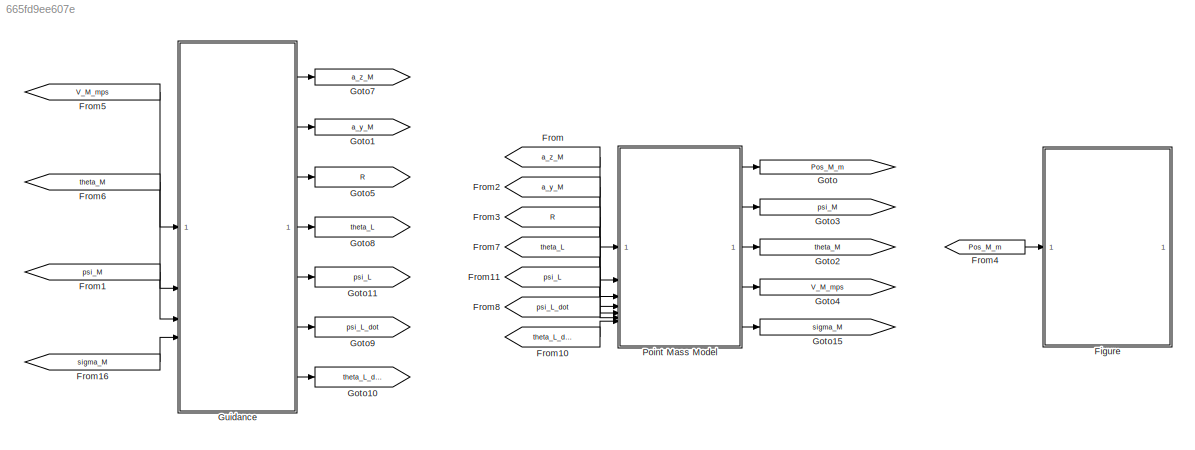
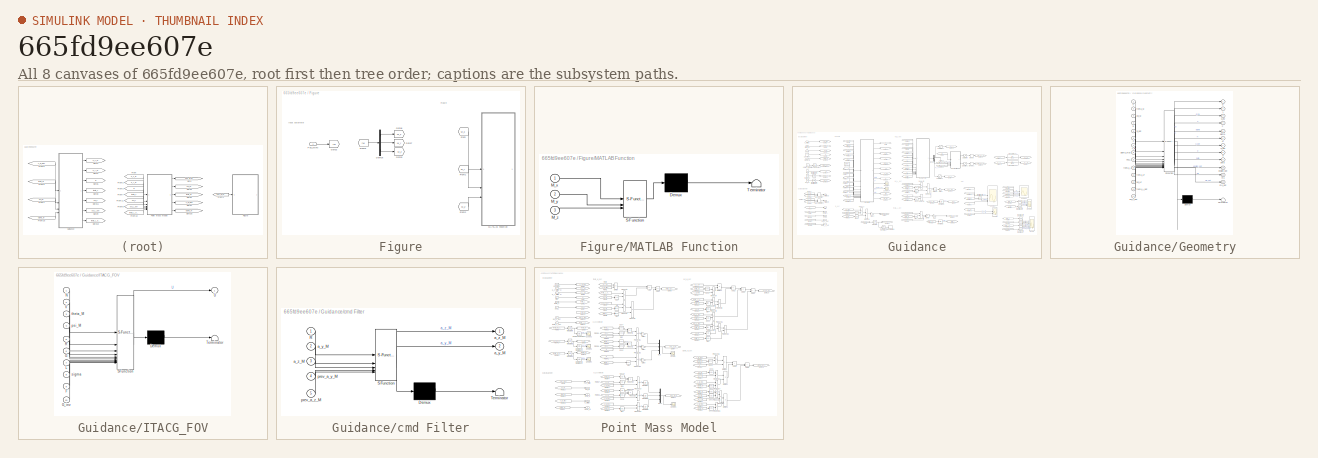
[diagram: thumbnail index - all 8 canvases of the model, root first then tree order]
MODEL slx_665fd9ee607e
KIND model
CONFIG AbsTol = auto
CONFIG EnableMultiTasking = off
CONFIG FixedStep = 1/100
CONFIG MaxStep = auto
CONFIG MinStep = auto
CONFIG RelTol = 1e-3
CONFIG SampleTimeConstraint = Unconstrained
CONFIG SolverName = ode4
CONFIG StartTime = 0.0
CONFIG StopTime = 60
BLOCK [SubSystem] Figure
BLOCK [Demux] Figure/Demux
  Outputs = 3
BLOCK [From] Figure/From
  GotoTag = M_x
BLOCK [From] Figure/From1
  GotoTag = M_y
BLOCK [From] Figure/From2
  GotoTag = M_z
BLOCK [From] Figure/From6
  GotoTag = rM
BLOCK [Goto] Figure/Goto2
  GotoTag = rM
BLOCK [Goto] Figure/Goto3
  GotoTag = M_z
BLOCK [Goto] Figure/Goto6
  GotoTag = M_x
BLOCK [Goto] Figure/Goto7
  GotoTag = M_y
BLOCK [SubSystem] Figure/MATLAB Function
  ErrorFcn = Stateflow.Translate.translate
  PermitHierarchicalResolution = ExplicitOnly
  SFBlockType = MATLAB Function
  TreatAsAtomicUnit = on
BLOCK [Demux] Figure/MATLAB Function/ Demux 
  Outputs = 1
BLOCK [S-Function] Figure/MATLAB Function/ SFunction 
  EnableBusSupport = on
  FunctionName = sf_sfun
  PortCounts = [3 1]
  SFcnIsStateOwnerBlock = off
  SFunctionDeploymentMode = off
  Tag = Stateflow S-Function 6
BLOCK [Terminator] Figure/MATLAB Function/ Terminator 
BLOCK [Inport] Figure/MATLAB Function/M_x
BLOCK [Inport] Figure/MATLAB Function/M_y
  Port = 2
BLOCK [Inport] Figure/MATLAB Function/M_z
  Port = 3
BLOCK [Inport] Figure/Pos_M[m]
BLOCK [From] From
  GotoTag = a_z_M
BLOCK [From] From1
  GotoTag = psi_M
BLOCK [From] From10
  GotoTag = theta_L_dot
BLOCK [From] From11
  GotoTag = psi_L
BLOCK [From] From16
  GotoTag = sigma_M
BLOCK [From] From2
  GotoTag = a_y_M
BLOCK [From] From3
  GotoTag = R
BLOCK [From] From4
  GotoTag = Pos_M_m
BLOCK [From] From5
  GotoTag = V_M_mps
BLOCK [From] From6
  GotoTag = theta_M
BLOCK [From] From7
  GotoTag = theta_L
BLOCK [From] From8
  GotoTag = psi_L_dot
BLOCK [Goto] Goto
  GotoTag = Pos_M_m
BLOCK [Goto] Goto1
  GotoTag = a_y_M
BLOCK [Goto] Goto10
  GotoTag = theta_L_dot
BLOCK [Goto] Goto11
  GotoTag = psi_L
BLOCK [Goto] Goto15
  GotoTag = sigma_M
BLOCK [Goto] Goto2
  GotoTag = theta_M
BLOCK [Goto] Goto3
  GotoTag = psi_M
BLOCK [Goto] Goto4
  GotoTag = V_M_mps
BLOCK [Goto] Goto5
  GotoTag = R
BLOCK [Goto] Goto7
  GotoTag = a_z_M
BLOCK [Goto] Goto8
  GotoTag = theta_L
BLOCK [Goto] Goto9
  GotoTag = psi_L_dot
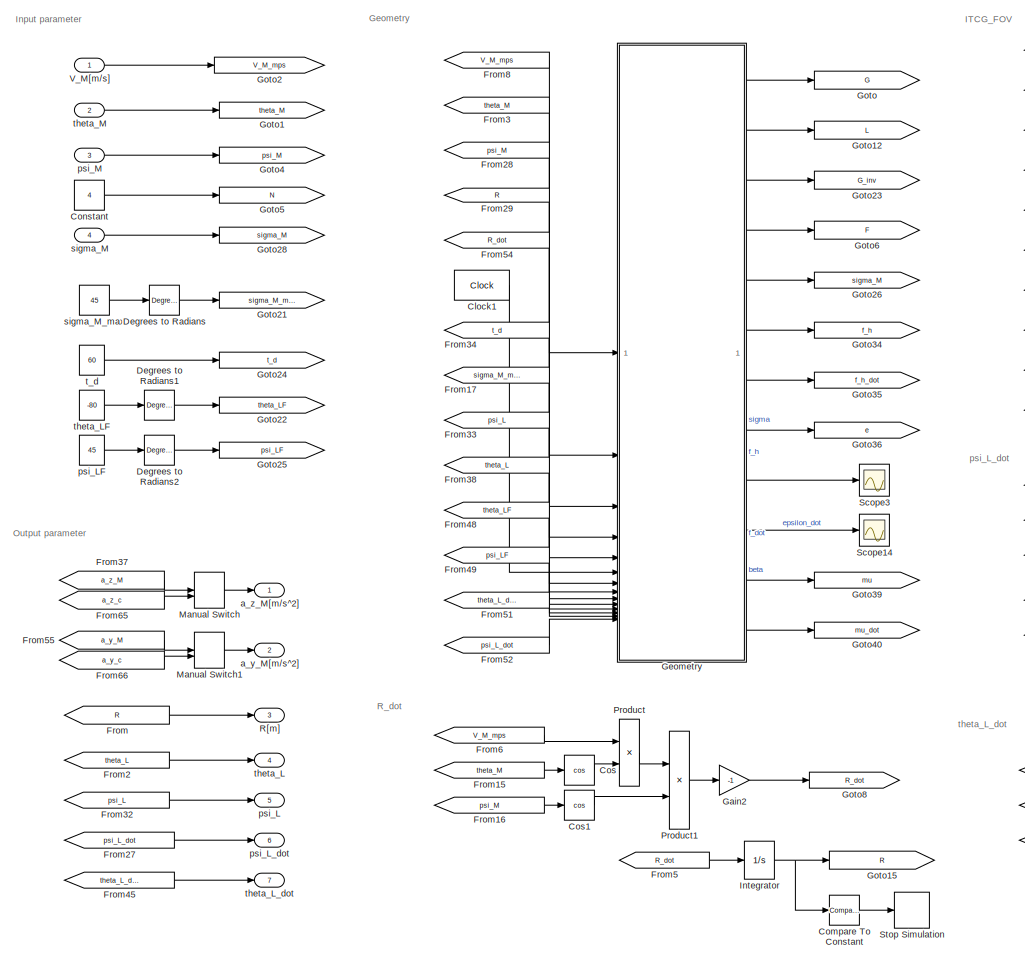
[diagram: Guidance - part 1/3, left side, full height]
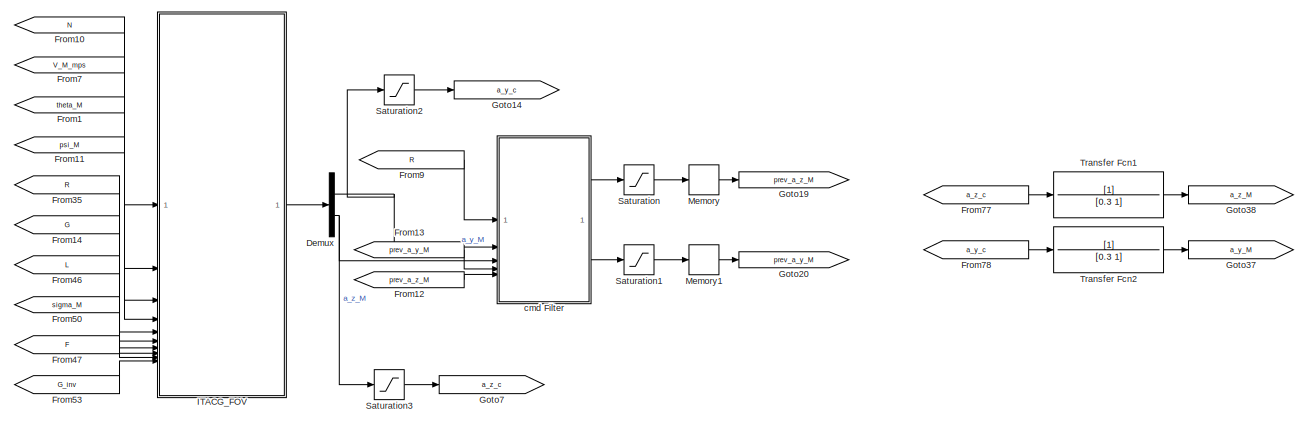
[diagram: Guidance - part 2/3, top right region]
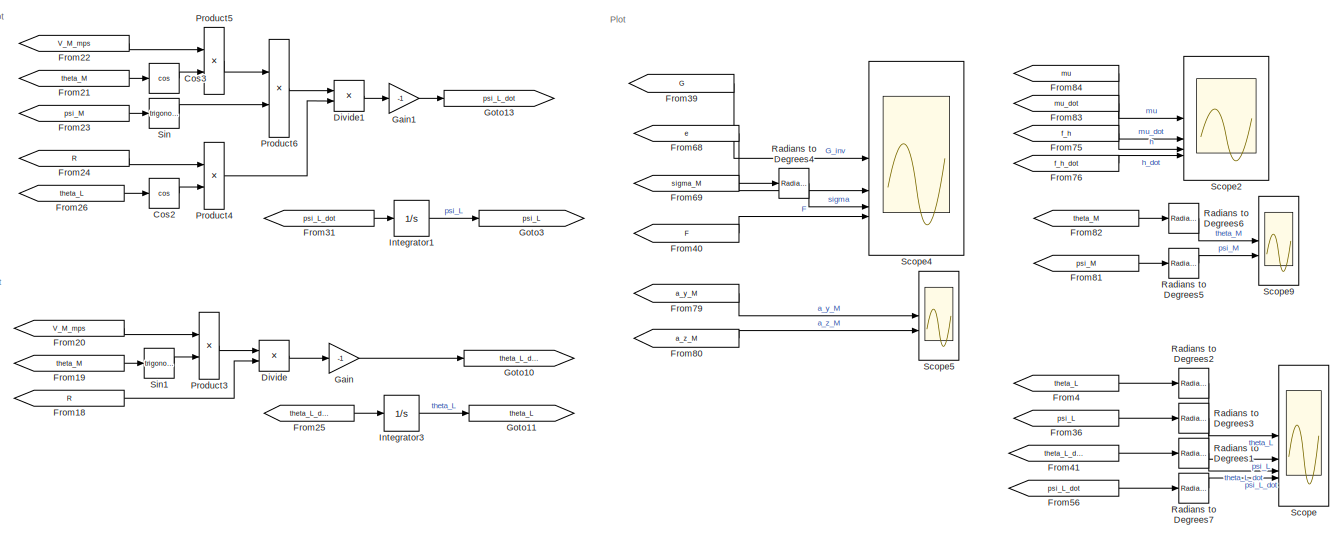
[diagram: Guidance - part 3/3, bottom right region]
BLOCK [SubSystem] Guidance
BLOCK [Clock] Guidance/Clock1
  DisplayTime = on
BLOCK [Reference] Guidance/Compare To Constant  REF=simulink/Logic and Bit
Operations/Compare
To Constant
  SourceBlock = simulink/Logic and Bit\nOperations/Compare\nTo Constant
  SourceType = Compare To Constant
BLOCK [Constant] Guidance/Constant
  Value = 4
BLOCK [Trigonometry] Guidance/Cos
  Operator = cos
BLOCK [Trigonometry] Guidance/Cos1
  Operator = cos
BLOCK [Trigonometry] Guidance/Cos2
  Operator = cos
BLOCK [Trigonometry] Guidance/Cos3
  Operator = cos
BLOCK [Reference] Guidance/Degrees to Radians  REF=simulink_extras/Transformations/Degrees to
Radians
  SourceBlock = simulink_extras/Transformations/Degrees to\nRadians
  SourceType = DegreesToRadians
BLOCK [Reference] Guidance/Degrees to Radians1  REF=simulink_extras/Transformations/Degrees to
Radians
  SourceBlock = simulink_extras/Transformations/Degrees to\nRadians
  SourceType = DegreesToRadians
BLOCK [Reference] Guidance/Degrees to Radians2  REF=simulink_extras/Transformations/Degrees to
Radians
  SourceBlock = simulink_extras/Transformations/Degrees to\nRadians
  SourceType = DegreesToRadians
BLOCK [Demux] Guidance/Demux
  Outputs = 2
BLOCK [Product] Guidance/Divide
  Inputs = */
BLOCK [Product] Guidance/Divide1
  Inputs = */
BLOCK [From] Guidance/From
  GotoTag = R
BLOCK [From] Guidance/From1
  GotoTag = theta_M
BLOCK [From] Guidance/From10
  GotoTag = N
BLOCK [From] Guidance/From11
  GotoTag = psi_M
BLOCK [From] Guidance/From12
  GotoTag = prev_a_z_M
BLOCK [From] Guidance/From13
  GotoTag = prev_a_y_M
BLOCK [From] Guidance/From14
  GotoTag = G
BLOCK [From] Guidance/From15
  GotoTag = theta_M
BLOCK [From] Guidance/From16
  GotoTag = psi_M
BLOCK [From] Guidance/From17
  GotoTag = sigma_M_max
BLOCK [From] Guidance/From18
  GotoTag = R
BLOCK [From] Guidance/From19
  GotoTag = theta_M
BLOCK [From] Guidance/From2
  GotoTag = theta_L
BLOCK [From] Guidance/From20
  GotoTag = V_M_mps
BLOCK [From] Guidance/From21
  GotoTag = theta_M
BLOCK [From] Guidance/From22
  GotoTag = V_M_mps
BLOCK [From] Guidance/From23
  GotoTag = psi_M
BLOCK [From] Guidance/From24
  GotoTag = R
BLOCK [From] Guidance/From25
  GotoTag = theta_L_dot
BLOCK [From] Guidance/From26
  GotoTag = theta_L
BLOCK [From] Guidance/From27
  GotoTag = psi_L_dot
BLOCK [From] Guidance/From28
  GotoTag = psi_M
BLOCK [From] Guidance/From29
  GotoTag = R
BLOCK [From] Guidance/From3
  GotoTag = theta_M
BLOCK [From] Guidance/From31
  GotoTag = psi_L_dot
BLOCK [From] Guidance/From32
  GotoTag = psi_L
BLOCK [From] Guidance/From33
  GotoTag = psi_L
BLOCK [From] Guidance/From34
  GotoTag = t_d
BLOCK [From] Guidance/From35
  GotoTag = R
BLOCK [From] Guidance/From36
  GotoTag = psi_L
BLOCK [From] Guidance/From37
  GotoTag = a_z_M
BLOCK [From] Guidance/From38
  GotoTag = theta_L
BLOCK [From] Guidance/From39
  GotoTag = G
BLOCK [From] Guidance/From4
  GotoTag = theta_L
BLOCK [From] Guidance/From40
  GotoTag = F
BLOCK [From] Guidance/From41
  GotoTag = theta_L_dot
BLOCK [From] Guidance/From45
  GotoTag = theta_L_dot
BLOCK [From] Guidance/From46
  GotoTag = L
BLOCK [From] Guidance/From47
  GotoTag = F
BLOCK [From] Guidance/From48
  GotoTag = theta_LF
BLOCK [From] Guidance/From49
  GotoTag = psi_LF
BLOCK [From] Guidance/From5
  GotoTag = R_dot
BLOCK [From] Guidance/From50
  GotoTag = sigma_M
BLOCK [From] Guidance/From51
  GotoTag = theta_L_dot
BLOCK [From] Guidance/From52
  GotoTag = psi_L_dot
BLOCK [From] Guidance/From53
  GotoTag = G_inv
BLOCK [From] Guidance/From54
  GotoTag = R_dot
BLOCK [From] Guidance/From55
  GotoTag = a_y_M
BLOCK [From] Guidance/From56
  GotoTag = psi_L_dot
BLOCK [From] Guidance/From6
  GotoTag = V_M_mps
BLOCK [From] Guidance/From65
  GotoTag = a_z_c
BLOCK [From] Guidance/From66
  GotoTag = a_y_c
  NameLocation = left
BLOCK [From] Guidance/From68
  GotoTag = e
BLOCK [From] Guidance/From69
  GotoTag = sigma_M
BLOCK [From] Guidance/From7
  GotoTag = V_M_mps
BLOCK [From] Guidance/From75
  GotoTag = f_h
BLOCK [From] Guidance/From76
  GotoTag = f_h_dot
BLOCK [From] Guidance/From77
  GotoTag = a_z_c
BLOCK [From] Guidance/From78
  GotoTag = a_y_c
BLOCK [From] Guidance/From79
  GotoTag = a_y_M
BLOCK [From] Guidance/From8
  GotoTag = V_M_mps
BLOCK [From] Guidance/From80
  GotoTag = a_z_M
BLOCK [From] Guidance/From81
  GotoTag = psi_M
BLOCK [From] Guidance/From82
  GotoTag = theta_M
BLOCK [From] Guidance/From83
  GotoTag = mu_dot
BLOCK [From] Guidance/From84
  GotoTag = mu
BLOCK [From] Guidance/From9
  GotoTag = R
BLOCK [Gain] Guidance/Gain
  Gain = -1
BLOCK [Gain] Guidance/Gain1
  Gain = -1
BLOCK [Gain] Guidance/Gain2
  Gain = -1
BLOCK [SubSystem] Guidance/Geometry
  ErrorFcn = Stateflow.Translate.translate
  PermitHierarchicalResolution = ExplicitOnly
  SFBlockType = MATLAB Function
  TreatAsAtomicUnit = on
BLOCK [Demux] Guidance/Geometry/ Demux 
  Outputs = 1
BLOCK [S-Function] Guidance/Geometry/ SFunction 
  EnableBusSupport = on
  FunctionName = sf_sfun
  PortCounts = [14 13]
  SFcnIsStateOwnerBlock = off
  SFunctionDeploymentMode = off
  Tag = Stateflow S-Function 3
BLOCK [Terminator] Guidance/Geometry/ Terminator 
BLOCK [Outport] Guidance/Geometry/F
  Port = 4
BLOCK [Outport] Guidance/Geometry/G
BLOCK [Outport] Guidance/Geometry/G_inv
  Port = 3
BLOCK [Outport] Guidance/Geometry/H
  Port = 6
BLOCK [Outport] Guidance/Geometry/H_dot
  Port = 7
BLOCK [Outport] Guidance/Geometry/L
  Port = 2
BLOCK [Inport] Guidance/Geometry/R
  Port = 4
BLOCK [Inport] Guidance/Geometry/R_dot
  Port = 5
BLOCK [Inport] Guidance/Geometry/V
BLOCK [Outport] Guidance/Geometry/beta
  Port = 9
BLOCK [Outport] Guidance/Geometry/e
  Port = 8
BLOCK [Outport] Guidance/Geometry/epsilon_dot
  Port = 10
BLOCK [Outport] Guidance/Geometry/mu
  Port = 11
BLOCK [Outport] Guidance/Geometry/mu_dot
  Port = 12
BLOCK [Inport] Guidance/Geometry/psi_L
  Port = 9
BLOCK [Inport] Guidance/Geometry/psi_LF
  Port = 12
BLOCK [Inport] Guidance/Geometry/psi_L_dot
  Port = 14
BLOCK [Inport] Guidance/Geometry/psi_M
  Port = 3
BLOCK [Outport] Guidance/Geometry/sigma
  Port = 5
BLOCK [Inport] Guidance/Geometry/sigma_max
  Port = 8
BLOCK [Inport] Guidance/Geometry/t
  Port = 6
BLOCK [Inport] Guidance/Geometry/t_d
  Port = 7
BLOCK [Inport] Guidance/Geometry/theta_L
  Port = 10
BLOCK [Inport] Guidance/Geometry/theta_LF
  Port = 11
BLOCK [Inport] Guidance/Geometry/theta_L_dot
  Port = 13
BLOCK [Inport] Guidance/Geometry/theta_M
  Port = 2
BLOCK [Goto] Guidance/Goto
  GotoTag = G
BLOCK [Goto] Guidance/Goto1
  GotoTag = theta_M
BLOCK [Goto] Guidance/Goto10
  GotoTag = theta_L_dot
BLOCK [Goto] Guidance/Goto11
  GotoTag = theta_L
BLOCK [Goto] Guidance/Goto12
  GotoTag = L
BLOCK [Goto] Guidance/Goto13
  GotoTag = psi_L_dot
BLOCK [Goto] Guidance/Goto14
  GotoTag = a_y_c
BLOCK [Goto] Guidance/Goto15
  GotoTag = R
BLOCK [Goto] Guidance/Goto19
  GotoTag = prev_a_z_M
BLOCK [Goto] Guidance/Goto2
  GotoTag = V_M_mps
BLOCK [Goto] Guidance/Goto20
  GotoTag = prev_a_y_M
BLOCK [Goto] Guidance/Goto21
  GotoTag = sigma_M_max
BLOCK [Goto] Guidance/Goto22
  GotoTag = theta_LF
BLOCK [Goto] Guidance/Goto23
  GotoTag = G_inv
BLOCK [Goto] Guidance/Goto24
  GotoTag = t_d
BLOCK [Goto] Guidance/Goto25
  GotoTag = psi_LF
BLOCK [Goto] Guidance/Goto26
  GotoTag = sigma_M
BLOCK [Goto] Guidance/Goto28
  Commented = on
  GotoTag = sigma_M
BLOCK [Goto] Guidance/Goto3
  GotoTag = psi_L
BLOCK [Goto] Guidance/Goto34
  GotoTag = f_h
BLOCK [Goto] Guidance/Goto35
  GotoTag = f_h_dot
BLOCK [Goto] Guidance/Goto36
  GotoTag = e
BLOCK [Goto] Guidance/Goto37
  GotoTag = a_y_M
BLOCK [Goto] Guidance/Goto38
  GotoTag = a_z_M
BLOCK [Goto] Guidance/Goto39
  GotoTag = mu
BLOCK [Goto] Guidance/Goto4
  GotoTag = psi_M
BLOCK [Goto] Guidance/Goto40
  GotoTag = mu_dot
BLOCK [Goto] Guidance/Goto5
  GotoTag = N
BLOCK [Goto] Guidance/Goto6
  GotoTag = F
BLOCK [Goto] Guidance/Goto7
  GotoTag = a_z_c
BLOCK [Goto] Guidance/Goto8
  GotoTag = R_dot
BLOCK [SubSystem] Guidance/ITACG_FOV
  ErrorFcn = Stateflow.Translate.translate
  LibrarySourceBlock = simulink/User-Defined\nFunctions/MATLAB Function
  PermitHierarchicalResolution = ExplicitOnly
  SFBlockType = MATLAB Function
  TreatAsAtomicUnit = on
BLOCK [Demux] Guidance/ITACG_FOV/ Demux 
  Outputs = 1
BLOCK [S-Function] Guidance/ITACG_FOV/ SFunction 
  EnableBusSupport = on
  FunctionName = sf_sfun
  PortCounts = [10 2]
  SFcnIsStateOwnerBlock = off
  SFunctionDeploymentMode = off
  Tag = Stateflow S-Function 2
BLOCK [Terminator] Guidance/ITACG_FOV/ Terminator 
BLOCK [Inport] Guidance/ITACG_FOV/F
  Port = 9
BLOCK [Inport] Guidance/ITACG_FOV/G
  Port = 6
BLOCK [Inport] Guidance/ITACG_FOV/G_inv
  Port = 10
BLOCK [Inport] Guidance/ITACG_FOV/L
  Port = 7
BLOCK [Inport] Guidance/ITACG_FOV/N
BLOCK [Inport] Guidance/ITACG_FOV/R
  Port = 5
BLOCK [Outport] Guidance/ITACG_FOV/U
BLOCK [Inport] Guidance/ITACG_FOV/V
  Port = 2
BLOCK [Inport] Guidance/ITACG_FOV/psi_M
  Port = 4
BLOCK [Inport] Guidance/ITACG_FOV/sigma
  Port = 8
BLOCK [Inport] Guidance/ITACG_FOV/theta_M
  Port = 3
BLOCK [Integrator] Guidance/Integrator
  InitialCondition = 15000
BLOCK [Integrator] Guidance/Integrator1
  InitialCondition = 45*pi/180
BLOCK [Integrator] Guidance/Integrator3
  InitialCondition = -15*pi/180
BLOCK [ManualSwitch] Guidance/Manual Switch
BLOCK [ManualSwitch] Guidance/Manual Switch1
BLOCK [Memory] Guidance/Memory
BLOCK [Memory] Guidance/Memory1
BLOCK [Product] Guidance/Product
BLOCK [Product] Guidance/Product1
BLOCK [Product] Guidance/Product3
BLOCK [Product] Guidance/Product4
BLOCK [Product] Guidance/Product5
BLOCK [Product] Guidance/Product6
BLOCK [Outport] Guidance/R[m]
  Port = 3
BLOCK [Reference] Guidance/Radians to Degrees1  REF=simulink_extras/Transformations/Radians
to Degrees
  SourceBlock = simulink_extras/Transformations/Radians\nto Degrees
  SourceType = RadiansToDegrees
BLOCK [Reference] Guidance/Radians to Degrees2  REF=simulink_extras/Transformations/Radians
to Degrees
  SourceBlock = simulink_extras/Transformations/Radians\nto Degrees
  SourceType = RadiansToDegrees
BLOCK [Reference] Guidance/Radians to Degrees3  REF=simulink_extras/Transformations/Radians
to Degrees
  SourceBlock = simulink_extras/Transformations/Radians\nto Degrees
  SourceType = RadiansToDegrees
BLOCK [Reference] Guidance/Radians to Degrees4  REF=simulink_extras/Transformations/Radians
to Degrees
  SourceBlock = simulink_extras/Transformations/Radians\nto Degrees
  SourceType = RadiansToDegrees
BLOCK [Reference] Guidance/Radians to Degrees5  REF=simulink_extras/Transformations/Radians
to Degrees
  SourceBlock = simulink_extras/Transformations/Radians\nto Degrees
  SourceType = RadiansToDegrees
BLOCK [Reference] Guidance/Radians to Degrees6  REF=simulink_extras/Transformations/Radians
to Degrees
  SourceBlock = simulink_extras/Transformations/Radians\nto Degrees
  SourceType = RadiansToDegrees
BLOCK [Reference] Guidance/Radians to Degrees7  REF=simulink_extras/Transformations/Radians
to Degrees
  SourceBlock = simulink_extras/Transformations/Radians\nto Degrees
  SourceType = RadiansToDegrees
BLOCK [Saturate] Guidance/Saturation
  LowerLimit = -100
  UpperLimit = 100
BLOCK [Saturate] Guidance/Saturation1
  LowerLimit = -100
  UpperLimit = 100
BLOCK [Saturate] Guidance/Saturation2
  LowerLimit = -100
  UpperLimit = 100
BLOCK [Saturate] Guidance/Saturation3
  LowerLimit = -100
  UpperLimit = 100
BLOCK [Scope] Guidance/Scope
  Floating = off
  NumInputPorts = 4
  ScopeSpecificationString = Simulink.scopes.TimeScopeBlockCfg('CurrentConfiguration', extmgr.ConfigurationSet(extmgr.Configuration('Core','General UI',true),extmgr.Configuration('Core','Source UI',true),extmgr.Configuration('Sources','WiredSimulink',true,'DataLoggingVariableName','ScopeData1'),extmgr.Configuration('Visuals','Time Domain',true,'SerializedDisplays',{struct('MinYLimReal','-56.90835','MaxYLimReal','11.77984','YL...<+3406ch>
BLOCK [Scope] Guidance/Scope14
  Floating = off
  NumInputPorts = 1
  ScopeSpecificationString = Simulink.scopes.TimeScopeBlockCfg('CurrentConfiguration', extmgr.ConfigurationSet(extmgr.Configuration('Core','General UI',true),extmgr.Configuration('Core','Source UI',true),extmgr.Configuration('Sources','WiredSimulink',true,'DataLoggingVariableName','ScopeData1'),extmgr.Configuration('Visuals','Time Domain',true,'SerializedDisplays',{struct('MinYLimReal','-1.21177','MaxYLimReal','0.12808','YLab...<+1443ch>
BLOCK [Scope] Guidance/Scope2
  Floating = off
  NumInputPorts = 4
  ScopeSpecificationString = Simulink.scopes.TimeScopeBlockCfg('CurrentConfiguration', extmgr.ConfigurationSet(extmgr.Configuration('Core','General UI',true),extmgr.Configuration('Core','Source UI',true),extmgr.Configuration('Sources','WiredSimulink',true,'DataLoggingVariableName','ScopeData1'),extmgr.Configuration('Visuals','Time Domain',true,'SerializedDisplays',{struct('MinYLimReal','-448.875','MaxYLimReal','4049.875','YLa...<+3415ch>
BLOCK [Scope] Guidance/Scope3
  Floating = off
  NumInputPorts = 1
  ScopeSpecificationString = Simulink.scopes.TimeScopeBlockCfg('CurrentConfiguration', extmgr.ConfigurationSet(extmgr.Configuration('Core','General UI',true),extmgr.Configuration('Core','Source UI',true),extmgr.Configuration('Sources','WiredSimulink',true,'DataLoggingVariableName','ScopeData1'),extmgr.Configuration('Visuals','Time Domain',true,'SerializedDisplays',{struct('MinYLimReal','-0.000001','MaxYLimReal','0.000015','YL...<+1446ch>
BLOCK [Scope] Guidance/Scope4
  Floating = off
  NumInputPorts = 4
  ScopeSpecificationString = Simulink.scopes.TimeScopeBlockCfg('CurrentConfiguration', extmgr.ConfigurationSet(extmgr.Configuration('Core','General UI',true),extmgr.Configuration('Core','Source UI',true),extmgr.Configuration('Sources','WiredSimulink',true,'DataLoggingVariableName','ScopeData3'),extmgr.Configuration('Visuals','Time Domain',true,'SerializedDisplays',{struct('MinYLimReal','-0.05364','MaxYLimReal','0.00611','YLab...<+3470ch>
BLOCK [Scope] Guidance/Scope5
  Floating = off
  NumInputPorts = 2
  ScopeSpecificationString = Simulink.scopes.TimeScopeBlockCfg('CurrentConfiguration', extmgr.ConfigurationSet(extmgr.Configuration('Core','General UI',true),extmgr.Configuration('Core','Source UI',true),extmgr.Configuration('Sources','WiredSimulink',true,'DataLoggingVariableName','ScopeData2'),extmgr.Configuration('Visuals','Time Domain',true,'SerializedDisplays',{struct('MinYLimReal','-14.43663','MaxYLimReal','12.58901','YL...<+2041ch>
BLOCK [Scope] Guidance/Scope9
  Floating = off
  NumInputPorts = 2
  ScopeSpecificationString = Simulink.scopes.TimeScopeBlockCfg('CurrentConfiguration', extmgr.ConfigurationSet(extmgr.Configuration('Core','General UI',true),extmgr.Configuration('Core','Source UI',true),extmgr.Configuration('Sources','WiredSimulink',true,'DataLoggingVariableName','ScopeData1'),extmgr.Configuration('Visuals','Time Domain',true,'SerializedDisplays',{struct('MinYLimReal','0.09525','MaxYLimReal','99.14276','YLab...<+2111ch>
BLOCK [Trigonometry] Guidance/Sin
BLOCK [Trigonometry] Guidance/Sin1
BLOCK [Stop] Guidance/Stop Simulation
BLOCK [TransferFcn] Guidance/Transfer Fcn1
  Denominator = [0.3 1]
  ParameterTunability = Optimized
BLOCK [TransferFcn] Guidance/Transfer Fcn2
  Denominator = [0.3 1]
  ParameterTunability = Optimized
BLOCK [Inport] Guidance/V_M[m//s]
BLOCK [Outport] Guidance/a_y_M[m//s^2]
  Port = 2
BLOCK [Outport] Guidance/a_z_M[m//s^2]
BLOCK [SubSystem] Guidance/cmd Filter
  ErrorFcn = Stateflow.Translate.translate
  PermitHierarchicalResolution = ExplicitOnly
  SFBlockType = MATLAB Function
  TreatAsAtomicUnit = on
BLOCK [Demux] Guidance/cmd Filter/ Demux 
  Outputs = 1
BLOCK [S-Function] Guidance/cmd Filter/ SFunction 
  EnableBusSupport = on
  FunctionName = sf_sfun
  PortCounts = [5 3]
  SFcnIsStateOwnerBlock = off
  SFunctionDeploymentMode = off
  Tag = Stateflow S-Function 1
BLOCK [Terminator] Guidance/cmd Filter/ Terminator 
BLOCK [Inport] Guidance/cmd Filter/R
BLOCK [Outport] Guidance/cmd Filter/a_y_M
  Port = 2
BLOCK [Inport] Guidance/cmd Filter/a_y_M 
  Port = 2
BLOCK [Outport] Guidance/cmd Filter/a_z_M
BLOCK [Inport] Guidance/cmd Filter/a_z_M 
  Port = 3
BLOCK [Inport] Guidance/cmd Filter/prev_a_y_M
  Port = 4
BLOCK [Inport] Guidance/cmd Filter/prev_a_z_M
  Port = 5
BLOCK [Outport] Guidance/psi_L
  Port = 5
BLOCK [Constant] Guidance/psi_LF
  Value = 45
BLOCK [Outport] Guidance/psi_L_dot
  Port = 6
BLOCK [Inport] Guidance/psi_M
  Port = 3
BLOCK [Inport] Guidance/sigma_M
  Port = 4
BLOCK [Constant] Guidance/sigma_M_max
  Value = 45
BLOCK [Constant] Guidance/t_d
  Value = 60
BLOCK [Outport] Guidance/theta_L
  Port = 4
BLOCK [Constant] Guidance/theta_LF
  Value = -80
BLOCK [Outport] Guidance/theta_L_dot
  Port = 7
BLOCK [Inport] Guidance/theta_M
  Port = 2
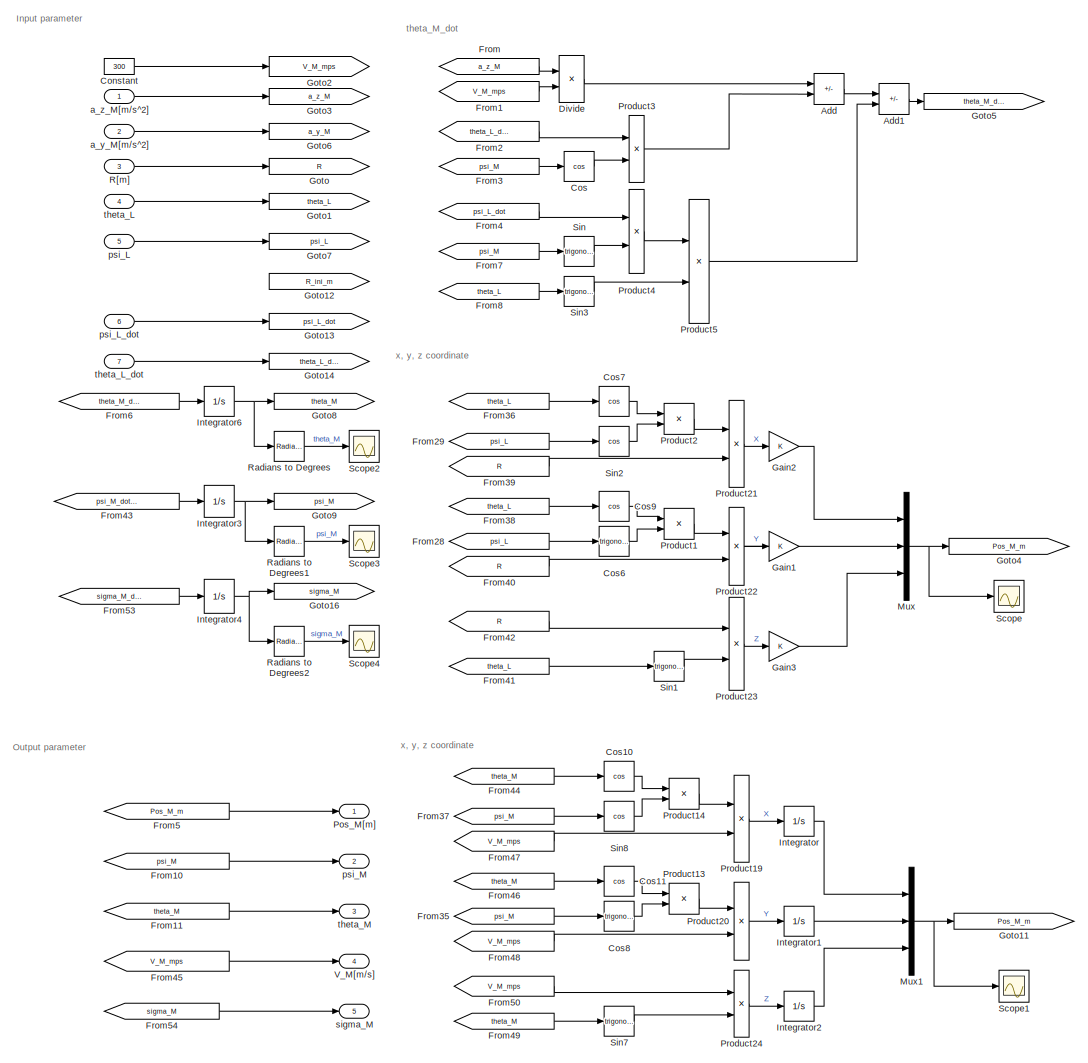
[diagram: Point Mass Model - part 1/2, left side, full height]
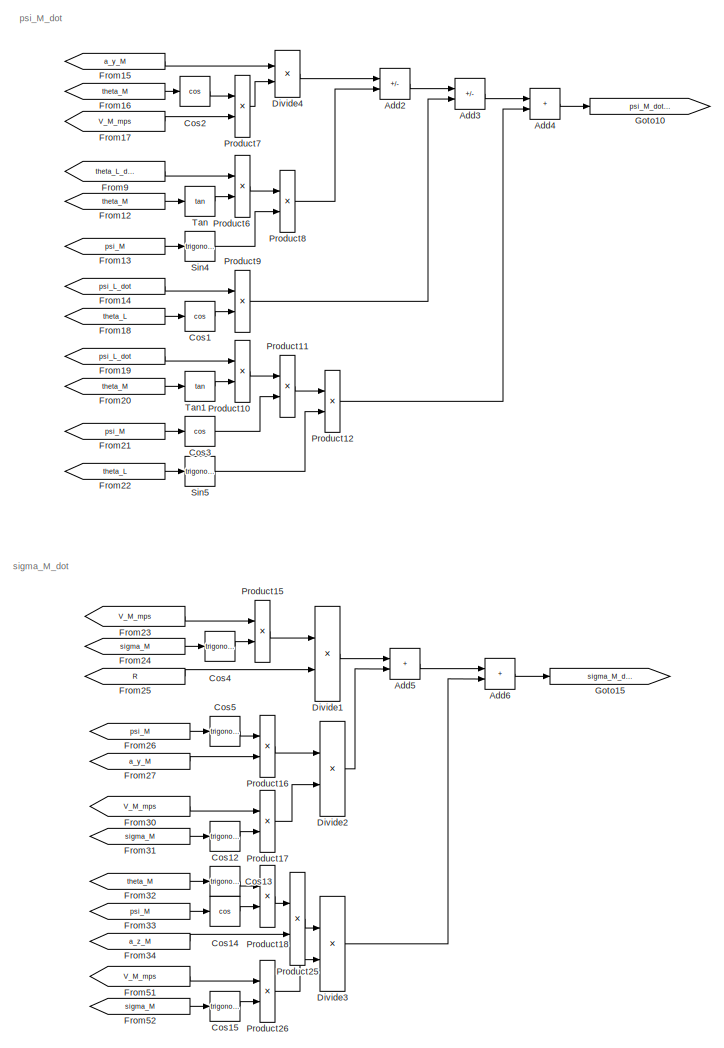
[diagram: Point Mass Model - part 2/2, right side, full height]
BLOCK [SubSystem] Point Mass Model
BLOCK [Sum] Point Mass Model/Add
  IconShape = rectangular
  Inputs = +-
BLOCK [Sum] Point Mass Model/Add1
  IconShape = rectangular
  Inputs = +-
BLOCK [Sum] Point Mass Model/Add2
  IconShape = rectangular
  Inputs = +-
BLOCK [Sum] Point Mass Model/Add3
  IconShape = rectangular
  Inputs = +-
BLOCK [Sum] Point Mass Model/Add4
  IconShape = rectangular
BLOCK [Sum] Point Mass Model/Add5
  IconShape = rectangular
BLOCK [Sum] Point Mass Model/Add6
  IconShape = rectangular
BLOCK [Constant] Point Mass Model/Constant
  Value = 300
BLOCK [Trigonometry] Point Mass Model/Cos
  Operator = cos
BLOCK [Trigonometry] Point Mass Model/Cos1
  Operator = cos
BLOCK [Trigonometry] Point Mass Model/Cos10
  Operator = cos
BLOCK [Trigonometry] Point Mass Model/Cos11
  Operator = cos
BLOCK [Trigonometry] Point Mass Model/Cos12
BLOCK [Trigonometry] Point Mass Model/Cos13
BLOCK [Trigonometry] Point Mass Model/Cos14
  Operator = cos
BLOCK [Trigonometry] Point Mass Model/Cos15
BLOCK [Trigonometry] Point Mass Model/Cos2
  Operator = cos
BLOCK [Trigonometry] Point Mass Model/Cos3
  Operator = cos
BLOCK [Trigonometry] Point Mass Model/Cos4
BLOCK [Trigonometry] Point Mass Model/Cos5
BLOCK [Trigonometry] Point Mass Model/Cos6
BLOCK [Trigonometry] Point Mass Model/Cos7
  Operator = cos
BLOCK [Trigonometry] Point Mass Model/Cos8
BLOCK [Trigonometry] Point Mass Model/Cos9
  Operator = cos
BLOCK [Product] Point Mass Model/Divide
  Inputs = */
BLOCK [Product] Point Mass Model/Divide1
  Inputs = */
BLOCK [Product] Point Mass Model/Divide2
  Inputs = */
BLOCK [Product] Point Mass Model/Divide3
  Inputs = */
BLOCK [Product] Point Mass Model/Divide4
  Inputs = */
BLOCK [From] Point Mass Model/From
  GotoTag = a_z_M
BLOCK [From] Point Mass Model/From1
  GotoTag = V_M_mps
BLOCK [From] Point Mass Model/From10
  GotoTag = psi_M
BLOCK [From] Point Mass Model/From11
  GotoTag = theta_M
BLOCK [From] Point Mass Model/From12
  GotoTag = theta_M
BLOCK [From] Point Mass Model/From13
  GotoTag = psi_M
BLOCK [From] Point Mass Model/From14
  GotoTag = psi_L_dot
BLOCK [From] Point Mass Model/From15
  GotoTag = a_y_M
BLOCK [From] Point Mass Model/From16
  GotoTag = theta_M
BLOCK [From] Point Mass Model/From17
  GotoTag = V_M_mps
BLOCK [From] Point Mass Model/From18
  GotoTag = theta_L
BLOCK [From] Point Mass Model/From19
  GotoTag = psi_L_dot
BLOCK [From] Point Mass Model/From2
  GotoTag = theta_L_dot
BLOCK [From] Point Mass Model/From20
  GotoTag = theta_M
BLOCK [From] Point Mass Model/From21
  GotoTag = psi_M
BLOCK [From] Point Mass Model/From22
  GotoTag = theta_L
BLOCK [From] Point Mass Model/From23
  GotoTag = V_M_mps
BLOCK [From] Point Mass Model/From24
  GotoTag = sigma_M
BLOCK [From] Point Mass Model/From25
  GotoTag = R
BLOCK [From] Point Mass Model/From26
  GotoTag = psi_M
BLOCK [From] Point Mass Model/From27
  GotoTag = a_y_M
BLOCK [From] Point Mass Model/From28
  GotoTag = psi_L
BLOCK [From] Point Mass Model/From29
  GotoTag = psi_L
BLOCK [From] Point Mass Model/From3
  GotoTag = psi_M
BLOCK [From] Point Mass Model/From30
  GotoTag = V_M_mps
BLOCK [From] Point Mass Model/From31
  GotoTag = sigma_M
BLOCK [From] Point Mass Model/From32
  GotoTag = theta_M
BLOCK [From] Point Mass Model/From33
  GotoTag = psi_M
BLOCK [From] Point Mass Model/From34
  GotoTag = a_z_M
BLOCK [From] Point Mass Model/From35
  GotoTag = psi_M
BLOCK [From] Point Mass Model/From36
  GotoTag = theta_L
  IconDisplay = Signal name
BLOCK [From] Point Mass Model/From37
  GotoTag = psi_M
BLOCK [From] Point Mass Model/From38
  GotoTag = theta_L
BLOCK [From] Point Mass Model/From39
  GotoTag = R
BLOCK [From] Point Mass Model/From4
  GotoTag = psi_L_dot
BLOCK [From] Point Mass Model/From40
  GotoTag = R
BLOCK [From] Point Mass Model/From41
  GotoTag = theta_L
BLOCK [From] Point Mass Model/From42
  GotoTag = R
BLOCK [From] Point Mass Model/From43
  GotoTag = psi_M_dot_state
BLOCK [From] Point Mass Model/From44
  GotoTag = theta_M
  IconDisplay = Signal name
BLOCK [From] Point Mass Model/From45
  GotoTag = V_M_mps
BLOCK [From] Point Mass Model/From46
  GotoTag = theta_M
BLOCK [From] Point Mass Model/From47
  GotoTag = V_M_mps
BLOCK [From] Point Mass Model/From48
  GotoTag = V_M_mps
BLOCK [From] Point Mass Model/From49
  GotoTag = theta_M
BLOCK [From] Point Mass Model/From5
  GotoTag = Pos_M_m
BLOCK [From] Point Mass Model/From50
  GotoTag = V_M_mps
BLOCK [From] Point Mass Model/From51
  GotoTag = V_M_mps
BLOCK [From] Point Mass Model/From52
  GotoTag = sigma_M
BLOCK [From] Point Mass Model/From53
  GotoTag = sigma_M_dot
BLOCK [From] Point Mass Model/From54
  GotoTag = sigma_M
BLOCK [From] Point Mass Model/From6
  GotoTag = theta_M_dot_state
BLOCK [From] Point Mass Model/From7
  GotoTag = psi_M
BLOCK [From] Point Mass Model/From8
  GotoTag = theta_L
BLOCK [From] Point Mass Model/From9
  GotoTag = theta_L_dot
BLOCK [Gain] Point Mass Model/Gain1
BLOCK [Gain] Point Mass Model/Gain2
BLOCK [Gain] Point Mass Model/Gain3
BLOCK [Goto] Point Mass Model/Goto
  GotoTag = R
BLOCK [Goto] Point Mass Model/Goto1
  GotoTag = theta_L
BLOCK [Goto] Point Mass Model/Goto10
  GotoTag = psi_M_dot_state
BLOCK [Goto] Point Mass Model/Goto11
  Commented = on
  GotoTag = Pos_M_m
BLOCK [Goto] Point Mass Model/Goto12
  GotoTag = R_ini_m
BLOCK [Goto] Point Mass Model/Goto13
  GotoTag = psi_L_dot
BLOCK [Goto] Point Mass Model/Goto14
  GotoTag = theta_L_dot
BLOCK [Goto] Point Mass Model/Goto15
  GotoTag = sigma_M_dot
BLOCK [Goto] Point Mass Model/Goto16
  GotoTag = sigma_M
BLOCK [Goto] Point Mass Model/Goto2
  GotoTag = V_M_mps
BLOCK [Goto] Point Mass Model/Goto3
  GotoTag = a_z_M
BLOCK [Goto] Point Mass Model/Goto4
  GotoTag = Pos_M_m
BLOCK [Goto] Point Mass Model/Goto5
  GotoTag = theta_M_dot_state
BLOCK [Goto] Point Mass Model/Goto6
  GotoTag = a_y_M
BLOCK [Goto] Point Mass Model/Goto7
  GotoTag = psi_L
BLOCK [Goto] Point Mass Model/Goto8
  GotoTag = theta_M
BLOCK [Goto] Point Mass Model/Goto9
  GotoTag = psi_M
BLOCK [Integrator] Point Mass Model/Integrator
BLOCK [Integrator] Point Mass Model/Integrator1
BLOCK [Integrator] Point Mass Model/Integrator2
BLOCK [Integrator] Point Mass Model/Integrator3
  InitialCondition = 0*pi/180
BLOCK [Integrator] Point Mass Model/Integrator4
  InitialCondition = 10*pi/180
BLOCK [Integrator] Point Mass Model/Integrator6
  InitialCondition = 10*pi/180
BLOCK [Mux] Point Mass Model/Mux
  DisplayOption = bar
  Inputs = 3
BLOCK [Mux] Point Mass Model/Mux1
  DisplayOption = bar
  Inputs = 3
BLOCK [Outport] Point Mass Model/Pos_M[m]
BLOCK [Product] Point Mass Model/Product1
BLOCK [Product] Point Mass Model/Product10
BLOCK [Product] Point Mass Model/Product11
BLOCK [Product] Point Mass Model/Product12
BLOCK [Product] Point Mass Model/Product13
BLOCK [Product] Point Mass Model/Product14
BLOCK [Product] Point Mass Model/Product15
BLOCK [Product] Point Mass Model/Product16
BLOCK [Product] Point Mass Model/Product17
BLOCK [Product] Point Mass Model/Product18
BLOCK [Product] Point Mass Model/Product19
BLOCK [Product] Point Mass Model/Product2
BLOCK [Product] Point Mass Model/Product20
BLOCK [Product] Point Mass Model/Product21
BLOCK [Product] Point Mass Model/Product22
BLOCK [Product] Point Mass Model/Product23
BLOCK [Product] Point Mass Model/Product24
BLOCK [Product] Point Mass Model/Product25
BLOCK [Product] Point Mass Model/Product26
BLOCK [Product] Point Mass Model/Product3
BLOCK [Product] Point Mass Model/Product4
BLOCK [Product] Point Mass Model/Product5
BLOCK [Product] Point Mass Model/Product6
BLOCK [Product] Point Mass Model/Product7
BLOCK [Product] Point Mass Model/Product8
BLOCK [Product] Point Mass Model/Product9
BLOCK [Inport] Point Mass Model/R[m]
  Port = 3
BLOCK [Reference] Point Mass Model/Radians to Degrees  REF=simulink_extras/Transformations/Radians
to Degrees
  SourceBlock = simulink_extras/Transformations/Radians\nto Degrees
  SourceType = RadiansToDegrees
BLOCK [Reference] Point Mass Model/Radians to Degrees1  REF=simulink_extras/Transformations/Radians
to Degrees
  SourceBlock = simulink_extras/Transformations/Radians\nto Degrees
  SourceType = RadiansToDegrees
BLOCK [Reference] Point Mass Model/Radians to Degrees2  REF=simulink_extras/Transformations/Radians
to Degrees
  SourceBlock = simulink_extras/Transformations/Radians\nto Degrees
  SourceType = RadiansToDegrees
BLOCK [Scope] Point Mass Model/Scope
  Floating = off
  NumInputPorts = 1
  ScopeSpecificationString = Simulink.scopes.TimeScopeBlockCfg('CurrentConfiguration', extmgr.ConfigurationSet(extmgr.Configuration('Core','General UI',true),extmgr.Configuration('Core','Source UI',true),extmgr.Configuration('Sources','WiredSimulink',true),extmgr.Configuration('Visuals','Time Domain',true,'SerializedDisplays',{struct('MinYLimReal','-7997.98203','MaxYLimReal','16312.27431','YLabelReal','','MinYLimMag','  0.000...<+1438ch>
BLOCK [Scope] Point Mass Model/Scope1
  Floating = off
  NumInputPorts = 1
  ScopeSpecificationString = Simulink.scopes.TimeScopeBlockCfg('CurrentConfiguration', extmgr.ConfigurationSet(extmgr.Configuration('Core','General UI',true),extmgr.Configuration('Core','Source UI',true),extmgr.Configuration('Sources','WiredSimulink',true,'DataLoggingVariableName','ScopeData3'),extmgr.Configuration('Visuals','Time Domain',true,'SerializedDisplays',{struct('MinYLimReal','-1433.78325','MaxYLimReal','12904.04929...<+1448ch>
BLOCK [Scope] Point Mass Model/Scope2
  Floating = off
  NumInputPorts = 1
  ScopeSpecificationString = Simulink.scopes.TimeScopeBlockCfg('CurrentConfiguration', extmgr.ConfigurationSet(extmgr.Configuration('Core','General UI',true),extmgr.Configuration('Core','Source UI',true),extmgr.Configuration('Sources','WiredSimulink',true,'DataLoggingVariableName','ScopeData7'),extmgr.Configuration('Visuals','Time Domain',true,'SerializedDisplays',{struct('MinYLimReal','-4.85604','MaxYLimReal','43.96969','YLa...<+1443ch>
BLOCK [Scope] Point Mass Model/Scope3
  Floating = off
  NumInputPorts = 1
  ScopeSpecificationString = Simulink.scopes.TimeScopeBlockCfg('CurrentConfiguration', extmgr.ConfigurationSet(extmgr.Configuration('Core','General UI',true),extmgr.Configuration('Core','Source UI',true),extmgr.Configuration('Sources','WiredSimulink',true,'DataLoggingVariableName','ScopeData8'),extmgr.Configuration('Visuals','Time Domain',true,'SerializedDisplays',{struct('MinYLimReal','-18.93376','MaxYLimReal','185.68978','Y...<+1447ch>
BLOCK [Scope] Point Mass Model/Scope4
  Floating = off
  NumInputPorts = 1
  ScopeSpecificationString = Simulink.scopes.TimeScopeBlockCfg('CurrentConfiguration', extmgr.ConfigurationSet(extmgr.Configuration('Core','General UI',true),extmgr.Configuration('Core','Source UI',true),extmgr.Configuration('Sources','WiredSimulink',true,'DataLoggingVariableName','ScopeData7'),extmgr.Configuration('Visuals','Time Domain',true,'SerializedDisplays',{struct('MinYLimReal','-150.76472','MaxYLimReal','66.99194','Y...<+1453ch>
BLOCK [Trigonometry] Point Mass Model/Sin
BLOCK [Trigonometry] Point Mass Model/Sin1
BLOCK [Trigonometry] Point Mass Model/Sin2
  Operator = cos
BLOCK [Trigonometry] Point Mass Model/Sin3
BLOCK [Trigonometry] Point Mass Model/Sin4
BLOCK [Trigonometry] Point Mass Model/Sin5
BLOCK [Trigonometry] Point Mass Model/Sin7
BLOCK [Trigonometry] Point Mass Model/Sin8
  Operator = cos
BLOCK [Trigonometry] Point Mass Model/Tan
  Operator = tan
BLOCK [Trigonometry] Point Mass Model/Tan1
  Operator = tan
BLOCK [Outport] Point Mass Model/V_M[m//s]
  Port = 4
BLOCK [Inport] Point Mass Model/a_y_M[m//s^2]
  Port = 2
BLOCK [Inport] Point Mass Model/a_z_M[m//s^2]
BLOCK [Inport] Point Mass Model/psi_L
  Port = 5
BLOCK [Inport] Point Mass Model/psi_L_dot
  Port = 6
BLOCK [Outport] Point Mass Model/psi_M
  Port = 2
BLOCK [Outport] Point Mass Model/sigma_M
  Port = 5
BLOCK [Inport] Point Mass Model/theta_L
  Port = 4
BLOCK [Inport] Point Mass Model/theta_L_dot
  Port = 7
BLOCK [Outport] Point Mass Model/theta_M
  Port = 3
ANNOTATION Figure: Figure
ANNOTATION Figure: Input parameter
ANNOTATION Guidance: Geometry
ANNOTATION Guidance: ITCG_FOV
ANNOTATION Guidance: Input parameter
ANNOTATION Guidance: Output parameter
ANNOTATION Guidance: Plot
ANNOTATION Guidance: R_dot
ANNOTATION Guidance: psi_L_dot
ANNOTATION Guidance: theta_L_dot
ANNOTATION Point Mass Model: Input parameter
ANNOTATION Point Mass Model: Output parameter
ANNOTATION Point Mass Model: psi_M_dot
ANNOTATION Point Mass Model: sigma_M_dot
ANNOTATION Point Mass Model: theta_M_dot
ANNOTATION Point Mass Model: x, y, z coordinate
LINE Figure/Demux:1 -> Figure/Goto6:1
LINE Figure/Demux:2 -> Figure/Goto7:1
LINE Figure/Demux:3 -> Figure/Goto3:1
LINE Figure/From1:1 -> Figure/MATLAB Function:2
LINE Figure/From2:1 -> Figure/MATLAB Function:3
LINE Figure/From6:1 -> Figure/Demux:1
LINE Figure/From:1 -> Figure/MATLAB Function:1
LINE Figure/Pos_M[m]:1 -> Figure/Goto2:1
LINE From10:1 -> Point Mass Model:7
LINE From11:1 -> Point Mass Model:5
LINE From16:1 -> Guidance:4
LINE From1:1 -> Guidance:3
LINE From2:1 -> Point Mass Model:2
LINE From3:1 -> Point Mass Model:3
LINE From4:1 -> Figure:1
LINE From5:1 -> Guidance:1
LINE From6:1 -> Guidance:2
LINE From7:1 -> Point Mass Model:4
LINE From8:1 -> Point Mass Model:6
LINE From:1 -> Point Mass Model:1
LINE Guidance/Clock1:1 -> Guidance/Geometry:6
LINE Guidance/Compare To Constant:1 -> Guidance/Stop Simulation:1
LINE Guidance/Constant:1 -> Guidance/Goto5:1
LINE Guidance/Cos1:1 -> Guidance/Product1:2
LINE Guidance/Cos2:1 -> Guidance/Product4:2
LINE Guidance/Cos3:1 -> Guidance/Product5:2
LINE Guidance/Cos:1 -> Guidance/Product:2
LINE Guidance/Degrees to Radians1:1 -> Guidance/Goto22:1
LINE Guidance/Degrees to Radians2:1 -> Guidance/Goto25:1
LINE Guidance/Degrees to Radians:1 -> Guidance/Goto21:1
NET Guidance/Demux:1 -> Guidance/Saturation2:1, Guidance/cmd Filter:2
NET Guidance/Demux:2 -> Guidance/Saturation3:1, Guidance/cmd Filter:3
LINE Guidance/Divide1:1 -> Guidance/Gain1:1
LINE Guidance/Divide:1 -> Guidance/Gain:1
LINE Guidance/From10:1 -> Guidance/ITACG_FOV:1
LINE Guidance/From11:1 -> Guidance/ITACG_FOV:4
LINE Guidance/From12:1 -> Guidance/cmd Filter:5
LINE Guidance/From13:1 -> Guidance/cmd Filter:4
LINE Guidance/From14:1 -> Guidance/ITACG_FOV:6
LINE Guidance/From15:1 -> Guidance/Cos:1
LINE Guidance/From16:1 -> Guidance/Cos1:1
LINE Guidance/From17:1 -> Guidance/Geometry:8
LINE Guidance/From18:1 -> Guidance/Divide:2
LINE Guidance/From19:1 -> Guidance/Sin1:1
LINE Guidance/From1:1 -> Guidance/ITACG_FOV:3
LINE Guidance/From20:1 -> Guidance/Product3:1
LINE Guidance/From21:1 -> Guidance/Cos3:1
LINE Guidance/From22:1 -> Guidance/Product5:1
LINE Guidance/From23:1 -> Guidance/Sin:1
LINE Guidance/From24:1 -> Guidance/Product4:1
LINE Guidance/From25:1 -> Guidance/Integrator3:1
LINE Guidance/From26:1 -> Guidance/Cos2:1
LINE Guidance/From27:1 -> Guidance/psi_L_dot:1
LINE Guidance/From28:1 -> Guidance/Geometry:3
LINE Guidance/From29:1 -> Guidance/Geometry:4
LINE Guidance/From2:1 -> Guidance/theta_L:1
LINE Guidance/From31:1 -> Guidance/Integrator1:1
LINE Guidance/From32:1 -> Guidance/psi_L:1
LINE Guidance/From33:1 -> Guidance/Geometry:9
LINE Guidance/From34:1 -> Guidance/Geometry:7
LINE Guidance/From35:1 -> Guidance/ITACG_FOV:5
LINE Guidance/From36:1 -> Guidance/Radians to Degrees3:1
LINE Guidance/From37:1 -> Guidance/Manual Switch:1
LINE Guidance/From38:1 -> Guidance/Geometry:10
LINE Guidance/From39:1 -> Guidance/Scope4:1
LINE Guidance/From3:1 -> Guidance/Geometry:2
LINE Guidance/From40:1 -> Guidance/Scope4:4
LINE Guidance/From41:1 -> Guidance/Radians to Degrees1:1
LINE Guidance/From45:1 -> Guidance/theta_L_dot:1
LINE Guidance/From46:1 -> Guidance/ITACG_FOV:7
LINE Guidance/From47:1 -> Guidance/ITACG_FOV:9
LINE Guidance/From48:1 -> Guidance/Geometry:11
LINE Guidance/From49:1 -> Guidance/Geometry:12
LINE Guidance/From4:1 -> Guidance/Radians to Degrees2:1
LINE Guidance/From50:1 -> Guidance/ITACG_FOV:8
LINE Guidance/From51:1 -> Guidance/Geometry:13
LINE Guidance/From52:1 -> Guidance/Geometry:14
LINE Guidance/From53:1 -> Guidance/ITACG_FOV:10
LINE Guidance/From54:1 -> Guidance/Geometry:5
LINE Guidance/From55:1 -> Guidance/Manual Switch1:1
LINE Guidance/From56:1 -> Guidance/Radians to Degrees7:1
LINE Guidance/From5:1 -> Guidance/Integrator:1
LINE Guidance/From65:1 -> Guidance/Manual Switch:2
LINE Guidance/From66:1 -> Guidance/Manual Switch1:2
LINE Guidance/From68:1 -> Guidance/Scope4:2
LINE Guidance/From69:1 -> Guidance/Radians to Degrees4:1
LINE Guidance/From6:1 -> Guidance/Product:1
LINE Guidance/From75:1 -> Guidance/Scope2:3
LINE Guidance/From76:1 -> Guidance/Scope2:4
LINE Guidance/From77:1 -> Guidance/Transfer Fcn1:1
LINE Guidance/From78:1 -> Guidance/Transfer Fcn2:1
LINE Guidance/From79:1 -> Guidance/Scope5:1
LINE Guidance/From7:1 -> Guidance/ITACG_FOV:2
LINE Guidance/From80:1 -> Guidance/Scope5:2
LINE Guidance/From81:1 -> Guidance/Radians to Degrees5:1
LINE Guidance/From82:1 -> Guidance/Radians to Degrees6:1
LINE Guidance/From83:1 -> Guidance/Scope2:2
LINE Guidance/From84:1 -> Guidance/Scope2:1
LINE Guidance/From8:1 -> Guidance/Geometry:1
LINE Guidance/From9:1 -> Guidance/cmd Filter:1
LINE Guidance/From:1 -> Guidance/R[m]:1
LINE Guidance/Gain1:1 -> Guidance/Goto13:1
LINE Guidance/Gain2:1 -> Guidance/Goto8:1
LINE Guidance/Gain:1 -> Guidance/Goto10:1
LINE Guidance/Geometry:1 -> Guidance/Goto:1
LINE Guidance/Geometry:10 -> Guidance/Scope14:1
LINE Guidance/Geometry:11 -> Guidance/Goto39:1
LINE Guidance/Geometry:12 -> Guidance/Goto40:1
LINE Guidance/Geometry:2 -> Guidance/Goto12:1
LINE Guidance/Geometry:3 -> Guidance/Goto23:1
LINE Guidance/Geometry:4 -> Guidance/Goto6:1
LINE Guidance/Geometry:5 -> Guidance/Goto26:1
LINE Guidance/Geometry:6 -> Guidance/Goto34:1
LINE Guidance/Geometry:7 -> Guidance/Goto35:1
LINE Guidance/Geometry:8 -> Guidance/Goto36:1
LINE Guidance/Geometry:9 -> Guidance/Scope3:1
LINE Guidance/ITACG_FOV:1 -> Guidance/Demux:1
LINE Guidance/Integrator1:1 -> Guidance/Goto3:1
LINE Guidance/Integrator3:1 -> Guidance/Goto11:1
NET Guidance/Integrator:1 -> Guidance/Compare To Constant:1, Guidance/Goto15:1
LINE Guidance/Manual Switch1:1 -> Guidance/a_y_M[m//s^2]:1
LINE Guidance/Manual Switch:1 -> Guidance/a_z_M[m//s^2]:1
LINE Guidance/Memory1:1 -> Guidance/Goto20:1
LINE Guidance/Memory:1 -> Guidance/Goto19:1
LINE Guidance/Product1:1 -> Guidance/Gain2:1
LINE Guidance/Product3:1 -> Guidance/Divide:1
LINE Guidance/Product4:1 -> Guidance/Divide1:2
LINE Guidance/Product5:1 -> Guidance/Product6:1
LINE Guidance/Product6:1 -> Guidance/Divide1:1
LINE Guidance/Product:1 -> Guidance/Product1:1
LINE Guidance/Radians to Degrees1:1 -> Guidance/Scope:3
LINE Guidance/Radians to Degrees2:1 -> Guidance/Scope:1
LINE Guidance/Radians to Degrees3:1 -> Guidance/Scope:2
LINE Guidance/Radians to Degrees4:1 -> Guidance/Scope4:3
LINE Guidance/Radians to Degrees5:1 -> Guidance/Scope9:2
LINE Guidance/Radians to Degrees6:1 -> Guidance/Scope9:1
LINE Guidance/Radians to Degrees7:1 -> Guidance/Scope:4
LINE Guidance/Saturation1:1 -> Guidance/Memory1:1
LINE Guidance/Saturation2:1 -> Guidance/Goto14:1
LINE Guidance/Saturation3:1 -> Guidance/Goto7:1
LINE Guidance/Saturation:1 -> Guidance/Memory:1
LINE Guidance/Sin1:1 -> Guidance/Product3:2
LINE Guidance/Sin:1 -> Guidance/Product6:2
LINE Guidance/Transfer Fcn1:1 -> Guidance/Goto38:1
LINE Guidance/Transfer Fcn2:1 -> Guidance/Goto37:1
LINE Guidance/V_M[m//s]:1 -> Guidance/Goto2:1
LINE Guidance/cmd Filter:1 -> Guidance/Saturation:1
LINE Guidance/cmd Filter:2 -> Guidance/Saturation1:1
LINE Guidance/psi_LF:1 -> Guidance/Degrees to Radians2:1
LINE Guidance/psi_M:1 -> Guidance/Goto4:1
LINE Guidance/sigma_M:1 -> Guidance/Goto28:1
LINE Guidance/sigma_M_max:1 -> Guidance/Degrees to Radians:1
LINE Guidance/t_d:1 -> Guidance/Goto24:1
LINE Guidance/theta_LF:1 -> Guidance/Degrees to Radians1:1
LINE Guidance/theta_M:1 -> Guidance/Goto1:1
LINE Guidance:1 -> Goto7:1
LINE Guidance:2 -> Goto1:1
LINE Guidance:3 -> Goto5:1
LINE Guidance:4 -> Goto8:1
LINE Guidance:5 -> Goto11:1
LINE Guidance:6 -> Goto9:1
LINE Guidance:7 -> Goto10:1
LINE Point Mass Model/Add1:1 -> Point Mass Model/Goto5:1
LINE Point Mass Model/Add2:1 -> Point Mass Model/Add3:1
LINE Point Mass Model/Add3:1 -> Point Mass Model/Add4:1
LINE Point Mass Model/Add4:1 -> Point Mass Model/Goto10:1
LINE Point Mass Model/Add5:1 -> Point Mass Model/Add6:1
LINE Point Mass Model/Add6:1 -> Point Mass Model/Goto15:1
LINE Point Mass Model/Add:1 -> Point Mass Model/Add1:1
LINE Point Mass Model/Constant:1 -> Point Mass Model/Goto2:1
LINE Point Mass Model/Cos10:1 -> Point Mass Model/Product14:1
LINE Point Mass Model/Cos11:1 -> Point Mass Model/Product13:1
LINE Point Mass Model/Cos12:1 -> Point Mass Model/Product17:2
LINE Point Mass Model/Cos13:1 -> Point Mass Model/Product18:1
LINE Point Mass Model/Cos14:1 -> Point Mass Model/Product18:2
LINE Point Mass Model/Cos15:1 -> Point Mass Model/Product26:2
LINE Point Mass Model/Cos1:1 -> Point Mass Model/Product9:2
LINE Point Mass Model/Cos2:1 -> Point Mass Model/Product7:1
LINE Point Mass Model/Cos3:1 -> Point Mass Model/Product11:2
LINE Point Mass Model/Cos4:1 -> Point Mass Model/Product15:2
LINE Point Mass Model/Cos5:1 -> Point Mass Model/Product16:1
LINE Point Mass Model/Cos6:1 -> Point Mass Model/Product1:2
LINE Point Mass Model/Cos7:1 -> Point Mass Model/Product2:1
LINE Point Mass Model/Cos8:1 -> Point Mass Model/Product13:2
LINE Point Mass Model/Cos9:1 -> Point Mass Model/Product1:1
LINE Point Mass Model/Cos:1 -> Point Mass Model/Product3:2
LINE Point Mass Model/Divide1:1 -> Point Mass Model/Add5:1
LINE Point Mass Model/Divide2:1 -> Point Mass Model/Add5:2
LINE Point Mass Model/Divide3:1 -> Point Mass Model/Add6:2
LINE Point Mass Model/Divide4:1 -> Point Mass Model/Add2:1
LINE Point Mass Model/Divide:1 -> Point Mass Model/Add:1
LINE Point Mass Model/From10:1 -> Point Mass Model/psi_M:1
LINE Point Mass Model/From11:1 -> Point Mass Model/theta_M:1
LINE Point Mass Model/From12:1 -> Point Mass Model/Tan:1
LINE Point Mass Model/From13:1 -> Point Mass Model/Sin4:1
LINE Point Mass Model/From14:1 -> Point Mass Model/Product9:1
LINE Point Mass Model/From15:1 -> Point Mass Model/Divide4:1
LINE Point Mass Model/From16:1 -> Point Mass Model/Cos2:1
LINE Point Mass Model/From17:1 -> Point Mass Model/Product7:2
LINE Point Mass Model/From18:1 -> Point Mass Model/Cos1:1
LINE Point Mass Model/From19:1 -> Point Mass Model/Product10:1
LINE Point Mass Model/From1:1 -> Point Mass Model/Divide:2
LINE Point Mass Model/From20:1 -> Point Mass Model/Tan1:1
LINE Point Mass Model/From21:1 -> Point Mass Model/Cos3:1
LINE Point Mass Model/From22:1 -> Point Mass Model/Sin5:1
LINE Point Mass Model/From23:1 -> Point Mass Model/Product15:1
LINE Point Mass Model/From24:1 -> Point Mass Model/Cos4:1
LINE Point Mass Model/From25:1 -> Point Mass Model/Divide1:2
LINE Point Mass Model/From26:1 -> Point Mass Model/Cos5:1
LINE Point Mass Model/From27:1 -> Point Mass Model/Product16:2
LINE Point Mass Model/From28:1 -> Point Mass Model/Cos6:1
LINE Point Mass Model/From29:1 -> Point Mass Model/Sin2:1
LINE Point Mass Model/From2:1 -> Point Mass Model/Product3:1
LINE Point Mass Model/From30:1 -> Point Mass Model/Product17:1
LINE Point Mass Model/From31:1 -> Point Mass Model/Cos12:1
LINE Point Mass Model/From32:1 -> Point Mass Model/Cos13:1
LINE Point Mass Model/From33:1 -> Point Mass Model/Cos14:1
LINE Point Mass Model/From34:1 -> Point Mass Model/Product25:2
LINE Point Mass Model/From35:1 -> Point Mass Model/Cos8:1
LINE Point Mass Model/From36:1 -> Point Mass Model/Cos7:1
LINE Point Mass Model/From37:1 -> Point Mass Model/Sin8:1
LINE Point Mass Model/From38:1 -> Point Mass Model/Cos9:1
LINE Point Mass Model/From39:1 -> Point Mass Model/Product21:2
LINE Point Mass Model/From3:1 -> Point Mass Model/Cos:1
LINE Point Mass Model/From40:1 -> Point Mass Model/Product22:2
LINE Point Mass Model/From41:1 -> Point Mass Model/Sin1:1
LINE Point Mass Model/From42:1 -> Point Mass Model/Product23:1
LINE Point Mass Model/From43:1 -> Point Mass Model/Integrator3:1
LINE Point Mass Model/From44:1 -> Point Mass Model/Cos10:1
LINE Point Mass Model/From45:1 -> Point Mass Model/V_M[m//s]:1
LINE Point Mass Model/From46:1 -> Point Mass Model/Cos11:1
LINE Point Mass Model/From47:1 -> Point Mass Model/Product19:2
LINE Point Mass Model/From48:1 -> Point Mass Model/Product20:2
LINE Point Mass Model/From49:1 -> Point Mass Model/Sin7:1
LINE Point Mass Model/From4:1 -> Point Mass Model/Product4:1
LINE Point Mass Model/From50:1 -> Point Mass Model/Product24:1
LINE Point Mass Model/From51:1 -> Point Mass Model/Product26:1
LINE Point Mass Model/From52:1 -> Point Mass Model/Cos15:1
LINE Point Mass Model/From53:1 -> Point Mass Model/Integrator4:1
LINE Point Mass Model/From54:1 -> Point Mass Model/sigma_M:1
LINE Point Mass Model/From5:1 -> Point Mass Model/Pos_M[m]:1
LINE Point Mass Model/From6:1 -> Point Mass Model/Integrator6:1
LINE Point Mass Model/From7:1 -> Point Mass Model/Sin:1
LINE Point Mass Model/From8:1 -> Point Mass Model/Sin3:1
LINE Point Mass Model/From9:1 -> Point Mass Model/Product6:1
LINE Point Mass Model/From:1 -> Point Mass Model/Divide:1
LINE Point Mass Model/Gain1:1 -> Point Mass Model/Mux:2
LINE Point Mass Model/Gain2:1 -> Point Mass Model/Mux:1
LINE Point Mass Model/Gain3:1 -> Point Mass Model/Mux:3
LINE Point Mass Model/Integrator1:1 -> Point Mass Model/Mux1:2
LINE Point Mass Model/Integrator2:1 -> Point Mass Model/Mux1:3
NET Point Mass Model/Integrator3:1 -> Point Mass Model/Goto9:1, Point Mass Model/Radians to Degrees1:1
NET Point Mass Model/Integrator4:1 -> Point Mass Model/Goto16:1, Point Mass Model/Radians to Degrees2:1
NET Point Mass Model/Integrator6:1 -> Point Mass Model/Goto8:1, Point Mass Model/Radians to Degrees:1
LINE Point Mass Model/Integrator:1 -> Point Mass Model/Mux1:1
NET Point Mass Model/Mux1:1 -> Point Mass Model/Goto11:1, Point Mass Model/Scope1:1
NET Point Mass Model/Mux:1 -> Point Mass Model/Goto4:1, Point Mass Model/Scope:1
LINE Point Mass Model/Product10:1 -> Point Mass Model/Product11:1
LINE Point Mass Model/Product11:1 -> Point Mass Model/Product12:1
LINE Point Mass Model/Product12:1 -> Point Mass Model/Add4:2
LINE Point Mass Model/Product13:1 -> Point Mass Model/Product20:1
LINE Point Mass Model/Product14:1 -> Point Mass Model/Product19:1
LINE Point Mass Model/Product15:1 -> Point Mass Model/Divide1:1
LINE Point Mass Model/Product16:1 -> Point Mass Model/Divide2:1
LINE Point Mass Model/Product17:1 -> Point Mass Model/Divide2:2
LINE Point Mass Model/Product18:1 -> Point Mass Model/Product25:1
LINE Point Mass Model/Product19:1 -> Point Mass Model/Integrator:1
LINE Point Mass Model/Product1:1 -> Point Mass Model/Product22:1
LINE Point Mass Model/Product20:1 -> Point Mass Model/Integrator1:1
LINE Point Mass Model/Product21:1 -> Point Mass Model/Gain2:1
LINE Point Mass Model/Product22:1 -> Point Mass Model/Gain1:1
LINE Point Mass Model/Product23:1 -> Point Mass Model/Gain3:1
LINE Point Mass Model/Product24:1 -> Point Mass Model/Integrator2:1
LINE Point Mass Model/Product25:1 -> Point Mass Model/Divide3:1
LINE Point Mass Model/Product26:1 -> Point Mass Model/Divide3:2
LINE Point Mass Model/Product2:1 -> Point Mass Model/Product21:1
LINE Point Mass Model/Product3:1 -> Point Mass Model/Add:2
LINE Point Mass Model/Product4:1 -> Point Mass Model/Product5:1
LINE Point Mass Model/Product5:1 -> Point Mass Model/Add1:2
LINE Point Mass Model/Product6:1 -> Point Mass Model/Product8:1
LINE Point Mass Model/Product7:1 -> Point Mass Model/Divide4:2
LINE Point Mass Model/Product8:1 -> Point Mass Model/Add2:2
LINE Point Mass Model/Product9:1 -> Point Mass Model/Add3:2
LINE Point Mass Model/R[m]:1 -> Point Mass Model/Goto:1
LINE Point Mass Model/Radians to Degrees1:1 -> Point Mass Model/Scope3:1
LINE Point Mass Model/Radians to Degrees2:1 -> Point Mass Model/Scope4:1
LINE Point Mass Model/Radians to Degrees:1 -> Point Mass Model/Scope2:1
LINE Point Mass Model/Sin1:1 -> Point Mass Model/Product23:2
LINE Point Mass Model/Sin2:1 -> Point Mass Model/Product2:2
LINE Point Mass Model/Sin3:1 -> Point Mass Model/Product5:2
LINE Point Mass Model/Sin4:1 -> Point Mass Model/Product8:2
LINE Point Mass Model/Sin5:1 -> Point Mass Model/Product12:2
LINE Point Mass Model/Sin7:1 -> Point Mass Model/Product24:2
LINE Point Mass Model/Sin8:1 -> Point Mass Model/Product14:2
LINE Point Mass Model/Sin:1 -> Point Mass Model/Product4:2
LINE Point Mass Model/Tan1:1 -> Point Mass Model/Product10:2
LINE Point Mass Model/Tan:1 -> Point Mass Model/Product6:2
LINE Point Mass Model/a_y_M[m//s^2]:1 -> Point Mass Model/Goto6:1
LINE Point Mass Model/a_z_M[m//s^2]:1 -> Point Mass Model/Goto3:1
LINE Point Mass Model/psi_L:1 -> Point Mass Model/Goto7:1
LINE Point Mass Model/psi_L_dot:1 -> Point Mass Model/Goto13:1
LINE Point Mass Model/theta_L:1 -> Point Mass Model/Goto1:1
LINE Point Mass Model/theta_L_dot:1 -> Point Mass Model/Goto14:1
LINE Point Mass Model:1 -> Goto:1
LINE Point Mass Model:2 -> Goto3:1
LINE Point Mass Model:3 -> Goto2:1
LINE Point Mass Model:4 -> Goto4:1
LINE Point Mass Model:5 -> Goto15:1
note: NET lines group one-source signal fan-out (src -> all destinations, sorted); 1:1 wires keep LINE
CHART Guidance/ITACG_FOV states=1 transitions=1
  STATE_LABEL 'eML_blk_kernel()'
  STATE_LABEL "SCRIPT:\nfunction U   = fcn(N, V, theta_M, psi_M, R, G, L, sigma, F, G_inv)\n    D2R = 180/pi;\n    sigma_s = 0.001 * D2R;\n    % sigma_deg = sigma*180/pi;\n    U_PN = [-sin(psi_M) -sin(theta_M)*cos(psi_M)]';\n    %% G_inv\n    % U_eq = G_inv * F;\n\n    % if abs(sigma) > sigma_s\n    %     U = G_inv * L + U_eq;\n    % else\n    %     U = N * V^2 * U_PN / R;\n    % end\n    % U = G_inv * L + U_eq;\n\n    %% G^-1\n...<+127ch>"
CHART Guidance/Geometry states=1 transitions=1
  STATE_LABEL 'eML_blk_kernel()'
  STATE_LABEL 'SCRIPT:\nfunction [G, L, G_inv, F, sigma, H, H_dot, e, beta, epsilon_dot, mu, mu_dot] =fcn(V, theta_M, psi_M, R, R_dot, t, t_d, sigma_max, psi_L, theta_L, theta_LF, psi_LF, theta_L_dot, psi_L_dot)\n    %% constant parameter\n    b= 0.1;\n    k= 1.4;\n    eta = 0.5;\n    T_s = 0.6 * t_d;\n\n    %% guidance parameter\n    sigma = acos(cos(theta_M) * cos(psi_M));\n    t_go = t_d - t;\n\n    %% epsilon\n    epsilo...<+2640ch>'
CHART Figure/MATLAB Function states=1 transitions=1
  STATE_LABEL 'eML_blk_kernel()'
  STATE_LABEL "SCRIPT:\nfunction fcn(M_x, M_y, M_z)\n\npersistent data timeldx\nif isempty(data)      \n    data=zeros(100000,3);\n    timeldx=1;\nend\n\n\npos_missile=zeros(1,3);\npos_missile(1,2)=M_x;\npos_missile(1,1)=M_y;\npos_missile(1,3)=-M_z;\n\n\n\ndata(timeldx,:)=pos_missile;\n\nplot3(data(1:timeldx,2), data(1:timeldx,1), data(1:timeldx, 3));\ngrid;\nhold on;\nplot3(0,0, 00, '*');\n\nplot3(M_x, M_y, -M_z, 'rpentagram', 'LineWi...<+274ch>"
CHART Guidance/cmd Filter states=1 transitions=1
  STATE_LABEL 'eML_blk_kernel()'
  STATE_LABEL 'SCRIPT:\nfunction [a_z_M, a_y_M] = fcn(R, a_y_M, a_z_M, prev_a_y_M, prev_a_z_M)\n\nif R<10\n    a_z_M = prev_a_z_M;\n    a_y_M = prev_a_y_M;\nend\n'
CHART  states=0 transitions=0
CHART  states=0 transitions=0
CHART  states=0 transitions=0
CHART  states=0 transitions=0
